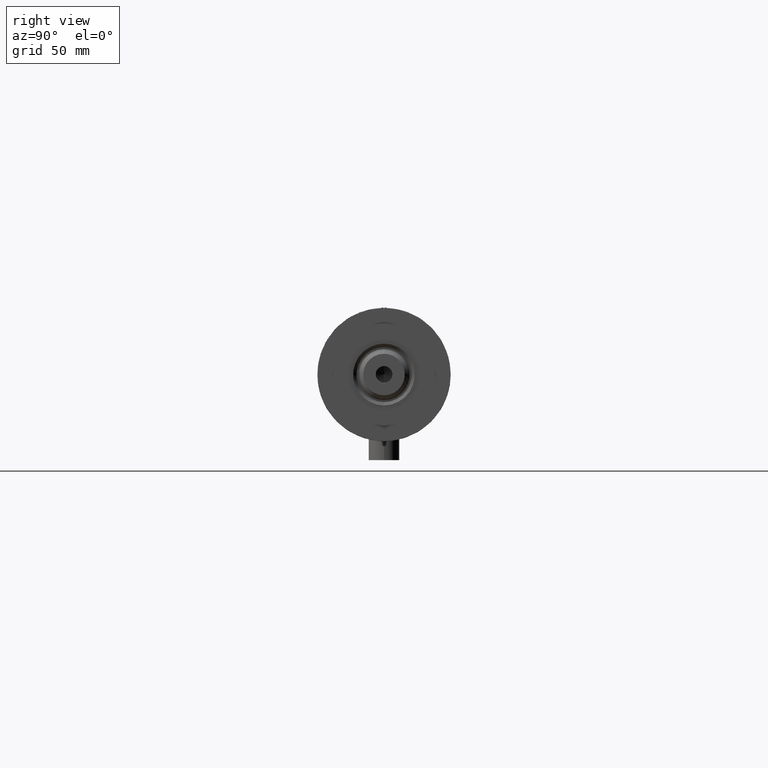
[diagram: clean part render]
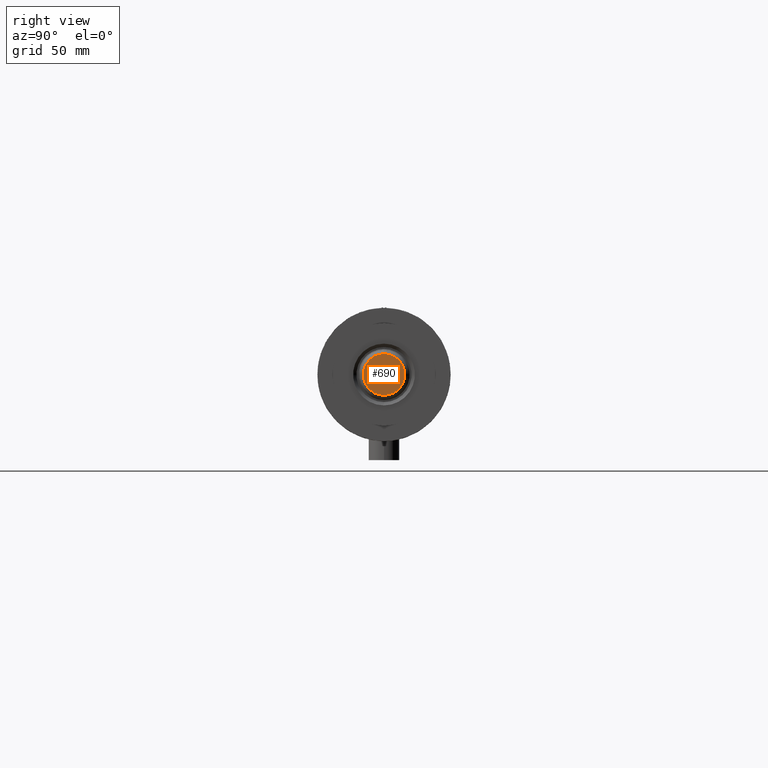
[diagram: same view with one face highlighted and labeled with its STEP entity id]
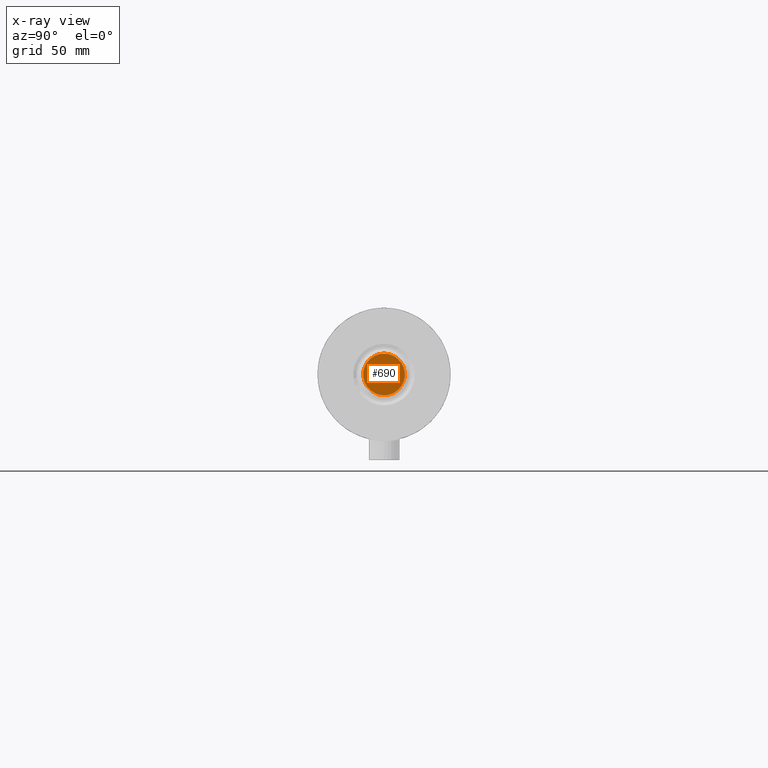
[diagram: x-ray of the same camera — body ghosted, the highlighted face saturated]
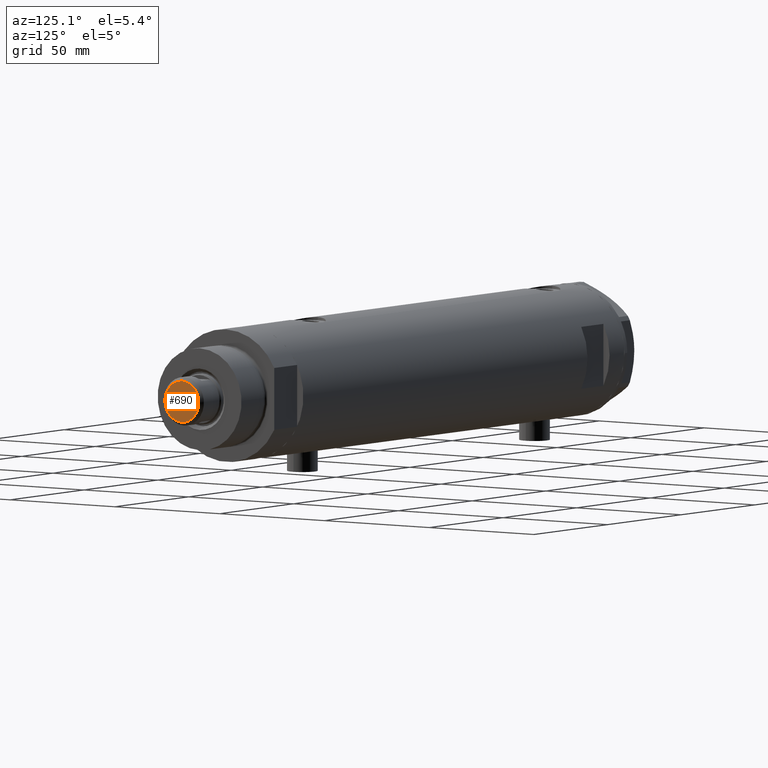
[diagram: same view with one face highlighted and labeled with its STEP entity id]
A machine part, right view. The second image highlights one B-rep face of the part: STEP entity #690.
The next image is the same camera in x-ray: the body ghosted, the highlighted face saturated — about 0% of this face is hidden behind the body in this view.
A second angle (auxiliary view) of the same face is appended — the face is thin or edge-on in the first view.
In plain terms, the highlighted planar face has unit normal (1, 0, -0).
Its self-contained STEP definition (entity closure, byte-faithful):
#114 = VERTEX_POINT ( 'NONE', #599 ) ;
#432 = CARTESIAN_POINT ( 'NONE',  ( 0.000000000000000000, 0.000000000000000000, 239.6000000000000227 ) ) ;
#562 = DIRECTION ( 'NONE',  ( 0.000000000000000000, 0.000000000000000000, 1.000000000000000000 ) ) ;
#582 = CARTESIAN_POINT ( 'NONE',  ( 0.000000000000000000, 0.000000000000000000, 239.6000000000000227 ) ) ;
#599 = CARTESIAN_POINT ( 'NONE',  ( -8.099999999999967670, 0.000000000000000000, 239.6000000000000227 ) ) ;
#690 = ADVANCED_FACE ( 'NONE', ( #4827, #4388 ), #764, .T. ) ;
#717 = AXIS2_PLACEMENT_3D ( 'NONE', #432, #1228, #3952 ) ;
#764 = PLANE ( 'NONE',  #717 ) ;
#970 = DIRECTION ( 'NONE',  ( 0.000000000000000000, 0.000000000000000000, 1.000000000000000000 ) ) ;
#1009 = EDGE_LOOP ( 'NONE', ( #4284, #1848 ) ) ;
#1128 = AXIS2_PLACEMENT_3D ( 'NONE', #4922, #562, #4947 ) ;
#1228 = DIRECTION ( 'NONE',  ( 0.000000000000000000, 0.000000000000000000, 1.000000000000000000 ) ) ;
#1284 = CARTESIAN_POINT ( 'NONE',  ( 0.000000000000000000, 0.000000000000000000, 239.6000000000000227 ) ) ;
#1305 = CIRCLE ( 'NONE', #2829, 8.099999999999967670 ) ;
#1328 = ORIENTED_EDGE ( 'NONE', *, *, #2650, .F. ) ;
#1527 = DIRECTION ( 'NONE',  ( 1.000000000000000000, 0.000000000000000000, 0.000000000000000000 ) ) ;
#1728 = VERTEX_POINT ( 'NONE', #4028 ) ;
#1820 = CARTESIAN_POINT ( 'NONE',  ( 3.249999999999998224, 0.000000000000000000, 239.6000000000000227 ) ) ;
#1848 = ORIENTED_EDGE ( 'NONE', *, *, #3706, .T. ) ;
#1882 = CIRCLE ( 'NONE', #1128, 8.099999999999967670 ) ;
#2518 = DIRECTION ( 'NONE',  ( 1.000000000000000000, 0.000000000000000000, 0.000000000000000000 ) ) ;
#2650 = EDGE_CURVE ( 'NONE', #3607, #2742, #2746, .T. ) ;
#2742 = VERTEX_POINT ( 'NONE', #1820 ) ;
#2746 = CIRCLE ( 'NONE', #3080, 3.249999999999998224 ) ;
#2829 = AXIS2_PLACEMENT_3D ( 'NONE', #582, #970, #2518 ) ;
#3055 = EDGE_LOOP ( 'NONE', ( #5195, #1328 ) ) ;
#3080 = AXIS2_PLACEMENT_3D ( 'NONE', #4467, #4073, #1527 ) ;
#3142 = CIRCLE ( 'NONE', #5148, 3.249999999999998224 ) ;
#3607 = VERTEX_POINT ( 'NONE', #4873 ) ;
#3706 = EDGE_CURVE ( 'NONE', #1728, #114, #1882, .T. ) ;
#3952 = DIRECTION ( 'NONE',  ( 1.000000000000000000, 0.000000000000000000, -0.000000000000000000 ) ) ;
#4011 = EDGE_CURVE ( 'NONE', #2742, #3607, #3142, .T. ) ;
#4028 = CARTESIAN_POINT ( 'NONE',  ( 8.099999999999967670, 1.077689183249668830E-15, 239.6000000000000227 ) ) ;
#4073 = DIRECTION ( 'NONE',  ( -0.000000000000000000, -0.000000000000000000, 1.000000000000000000 ) ) ;
#4284 = ORIENTED_EDGE ( 'NONE', *, *, #5044, .T. ) ;
#4388 = FACE_BOUND ( 'NONE', #3055, .T. ) ;
#4434 = DIRECTION ( 'NONE',  ( 1.000000000000000000, 0.000000000000000000, 0.000000000000000000 ) ) ;
#4467 = CARTESIAN_POINT ( 'NONE',  ( 0.000000000000000000, 0.000000000000000000, 239.6000000000000227 ) ) ;
#4505 = DIRECTION ( 'NONE',  ( -0.000000000000000000, -0.000000000000000000, 1.000000000000000000 ) ) ;
#4827 = FACE_OUTER_BOUND ( 'NONE', #1009, .T. ) ;
#4873 = CARTESIAN_POINT ( 'NONE',  ( -3.249999999999998224, 3.980102097228895766E-16, 239.6000000000000227 ) ) ;
#4922 = CARTESIAN_POINT ( 'NONE',  ( 0.000000000000000000, 0.000000000000000000, 239.6000000000000227 ) ) ;
#4947 = DIRECTION ( 'NONE',  ( 1.000000000000000000, 0.000000000000000000, 0.000000000000000000 ) ) ;
#5044 = EDGE_CURVE ( 'NONE', #114, #1728, #1305, .T. ) ;
#5148 = AXIS2_PLACEMENT_3D ( 'NONE', #1284, #4505, #4434 ) ;
#5195 = ORIENTED_EDGE ( 'NONE', *, *, #4011, .F. ) ;